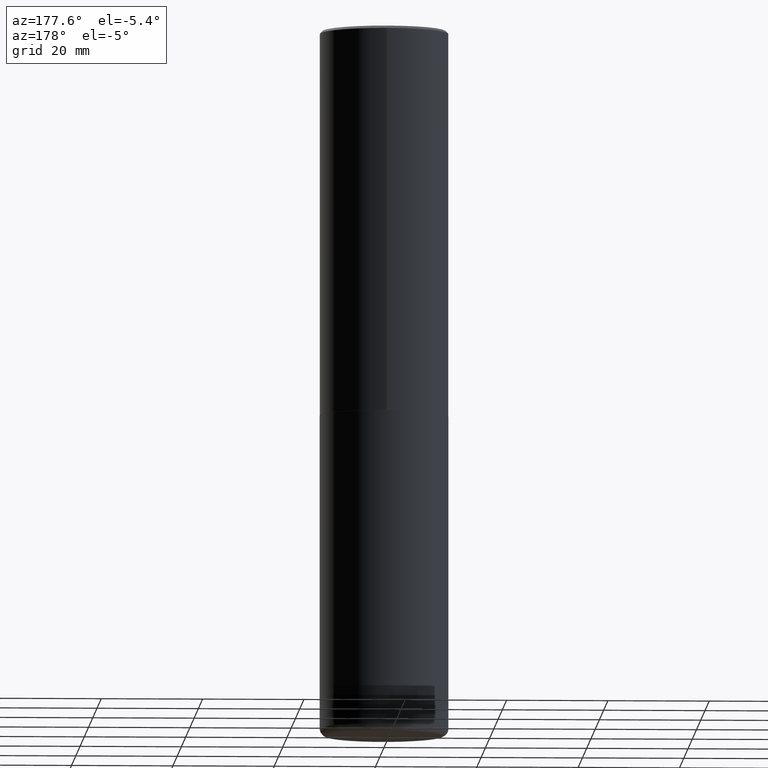
[diagram: clean part render]
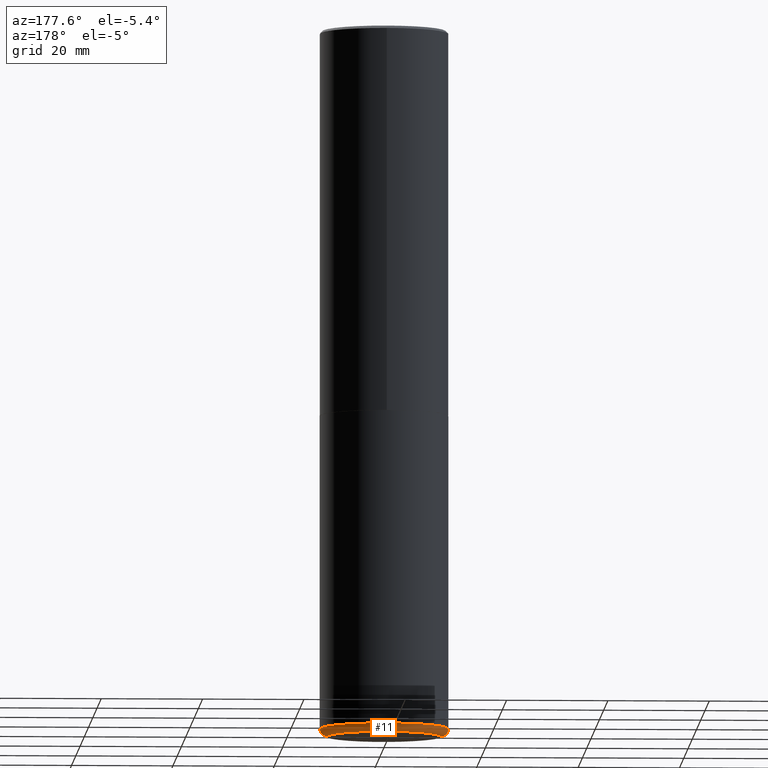
[diagram: same view with one face highlighted and labeled with its STEP entity id]
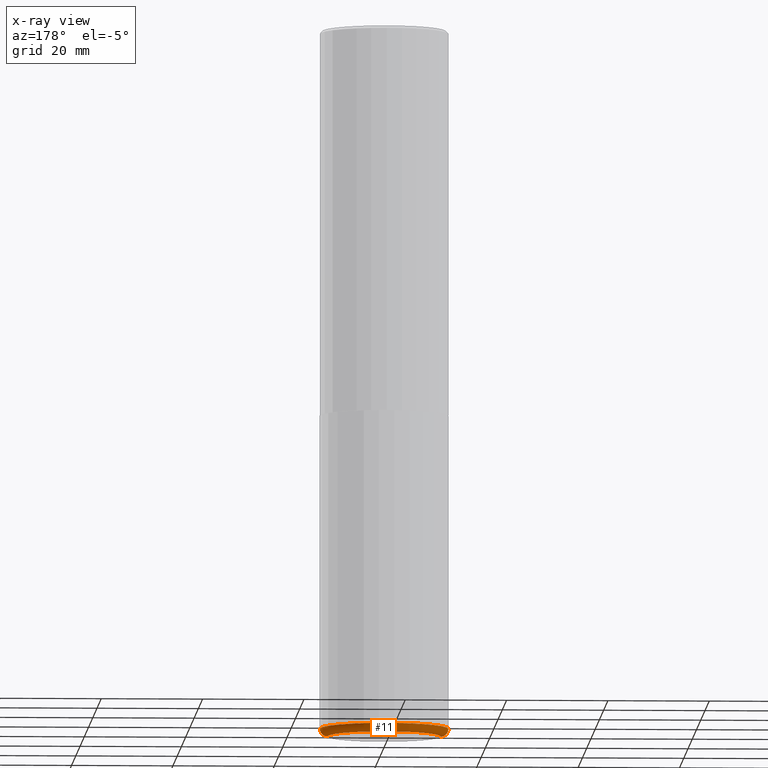
[diagram: x-ray of the same camera — body ghosted, the highlighted face saturated]
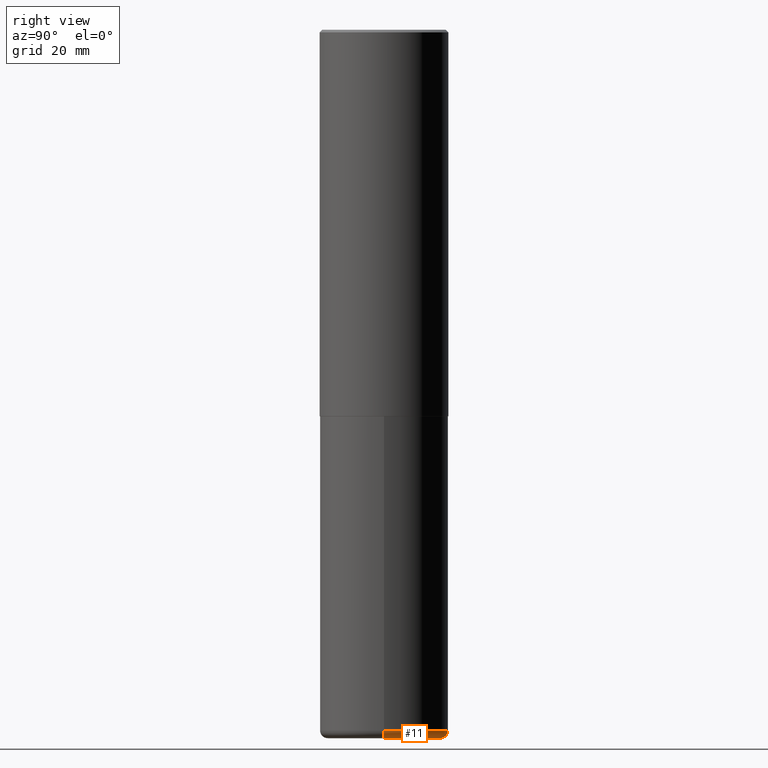
[diagram: same view with one face highlighted and labeled with its STEP entity id]
A machine part, auxiliary view. The second image highlights one B-rep face of the part: STEP entity #11.
The next image is the same camera in x-ray: the body ghosted, the highlighted face saturated — about 0% of this face is hidden behind the body in this view.
A second angle (right view) of the same face is appended — the face is thin or edge-on in the first view.
In plain terms, the highlighted toroidal blend (fillet) surface has major radius 11.176 mm and minor (blend) radius 1.524 mm.
Its self-contained STEP definition (entity closure, byte-faithful):
#5 = FACE_OUTER_BOUND ( 'NONE', #248, .T. ) ;
#11 = ADVANCED_FACE ( 'NONE', ( #5 ), #301, .T. ) ;
#35 = DIRECTION ( 'NONE',  ( 1.000000000000000000, -6.982962677686270655E-15, 0.000000000000000000 ) ) ;
#36 = VERTEX_POINT ( 'NONE', #174 ) ;
#38 = CIRCLE ( 'NONE', #93, 0.5000000000000001110 ) ;
#48 = DIRECTION ( 'NONE',  ( 1.000000000000000000, -6.982962677686269077E-15, 0.000000000000000000 ) ) ;
#55 = ORIENTED_EDGE ( 'NONE', *, *, #59, .T. ) ;
#59 = EDGE_CURVE ( 'NONE', #418, #147, #341, .T. ) ;
#76 = DIRECTION ( 'NONE',  ( -1.000000000000000000, 7.105427357600994759E-15, 0.000000000000000000 ) ) ;
#93 = AXIS2_PLACEMENT_3D ( 'NONE', #173, #270, #48 ) ;
#94 = CARTESIAN_POINT ( 'NONE',  ( 1.345007843401825128E-28, -1.920314736363730603E-14, -5.500000000000000888 ) ) ;
#106 = CARTESIAN_POINT ( 'NONE',  ( -0.4400000000000000022, -1.586727044596227254E-14, -5.439999999999999503 ) ) ;
#107 = DIRECTION ( 'NONE',  ( -2.445468806185136597E-29, 3.491481338843145583E-15, 1.000000000000000000 ) ) ;
#145 = ORIENTED_EDGE ( 'NONE', *, *, #201, .F. ) ;
#147 = VERTEX_POINT ( 'NONE', #159 ) ;
#155 = AXIS2_PLACEMENT_3D ( 'NONE', #94, #218, #35 ) ;
#159 = CARTESIAN_POINT ( 'NONE',  ( -0.4400000000000000022, -1.575885206539953724E-14, -5.500000000000000888 ) ) ;
#173 = CARTESIAN_POINT ( 'NONE',  ( 1.330335030564714425E-28, -1.899365848330671298E-14, -5.439999999999999503 ) ) ;
#174 = CARTESIAN_POINT ( 'NONE',  ( -0.5000000000000002220, -1.544094480450621205E-14, -5.439999999999999503 ) ) ;
#176 = CARTESIAN_POINT ( 'NONE',  ( 0.5000000000000002220, -2.248513982214985265E-14, -5.439999999999999503 ) ) ;
#187 = EDGE_CURVE ( 'NONE', #255, #36, #38, .T. ) ;
#201 = EDGE_CURVE ( 'NONE', #418, #255, #380, .T. ) ;
#218 = DIRECTION ( 'NONE',  ( -2.445468806185136597E-29, 3.491481338843145583E-15, 1.000000000000000000 ) ) ;
#220 = ORIENTED_EDGE ( 'NONE', *, *, #327, .T. ) ;
#232 = DIRECTION ( 'NONE',  ( 1.000000000000000000, -6.982962677686262766E-15, 4.883557194083111780E-29 ) ) ;
#240 = DIRECTION ( 'NONE',  ( 7.105427357601001859E-15, 1.000000000000000000, -3.491481338843145583E-15 ) ) ;
#242 = CIRCLE ( 'NONE', #335, 0.06000000000000051820 ) ;
#248 = EDGE_LOOP ( 'NONE', ( #55, #220, #331, #145 ) ) ;
#249 = AXIS2_PLACEMENT_3D ( 'NONE', #390, #107, #232 ) ;
#255 = VERTEX_POINT ( 'NONE', #176 ) ;
#268 = DIRECTION ( 'NONE',  ( 1.000000000000000000, -6.982962677686273021E-15, 0.000000000000000000 ) ) ;
#270 = DIRECTION ( 'NONE',  ( -2.445468806185136597E-29, 3.491481338843145583E-15, 1.000000000000000000 ) ) ;
#285 = CARTESIAN_POINT ( 'NONE',  ( 0.4400000000000000022, -2.227565094181926275E-14, -5.500000000000000888 ) ) ;
#301 = TOROIDAL_SURFACE ( 'NONE', #249, 0.4400000000000000022, 0.06000000000000051820 ) ;
#307 = DIRECTION ( 'NONE',  ( -6.982962677686266711E-15, -1.000000000000000000, 3.491481338843145583E-15 ) ) ;
#327 = EDGE_CURVE ( 'NONE', #147, #36, #242, .T. ) ;
#331 = ORIENTED_EDGE ( 'NONE', *, *, #187, .F. ) ;
#335 = AXIS2_PLACEMENT_3D ( 'NONE', #106, #240, #76 ) ;
#341 = CIRCLE ( 'NONE', #155, 0.4400000000000000022 ) ;
#380 = CIRCLE ( 'NONE', #384, 0.06000000000000051820 ) ;
#384 = AXIS2_PLACEMENT_3D ( 'NONE', #405, #307, #268 ) ;
#390 = CARTESIAN_POINT ( 'NONE',  ( 1.330335030564714425E-28, -1.899365848330671298E-14, -5.439999999999999503 ) ) ;
#405 = CARTESIAN_POINT ( 'NONE',  ( 0.4400000000000000022, -2.206616206148867286E-14, -5.439999999999999503 ) ) ;
#418 = VERTEX_POINT ( 'NONE', #285 ) ;